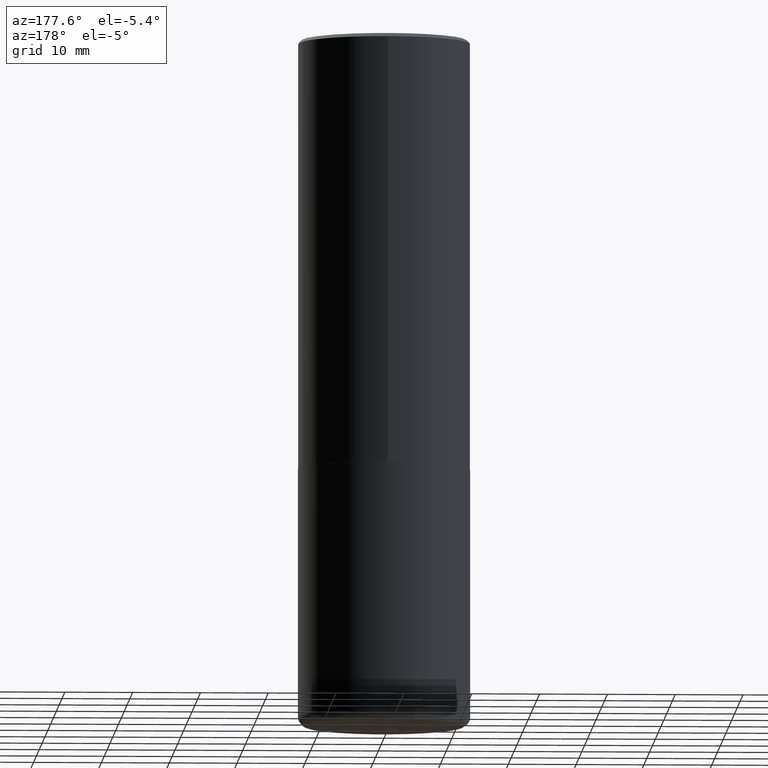
[diagram: clean part render]
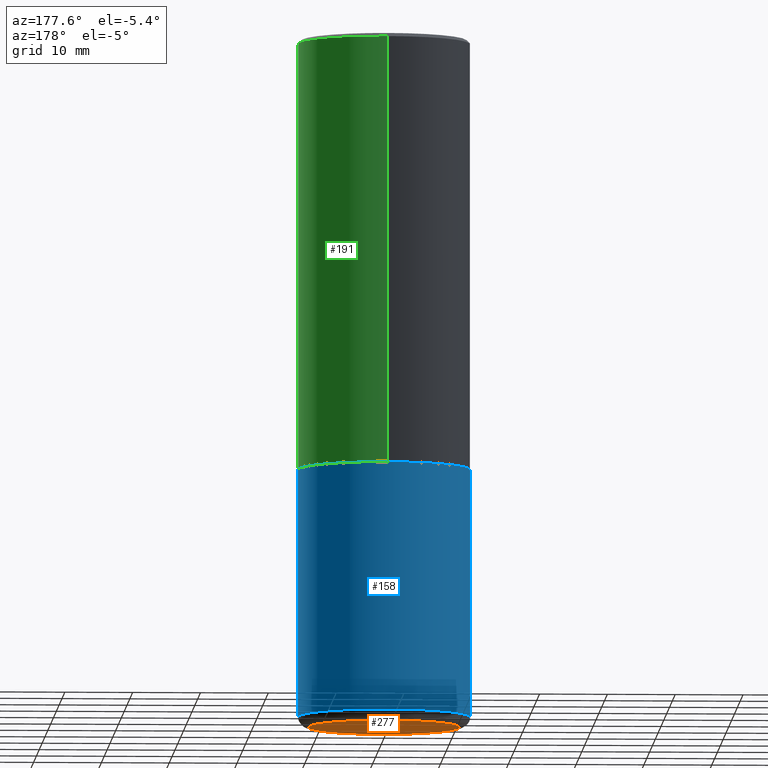
[diagram: same view with three faces highlighted in distinct colors, each labeled with its STEP entity id]
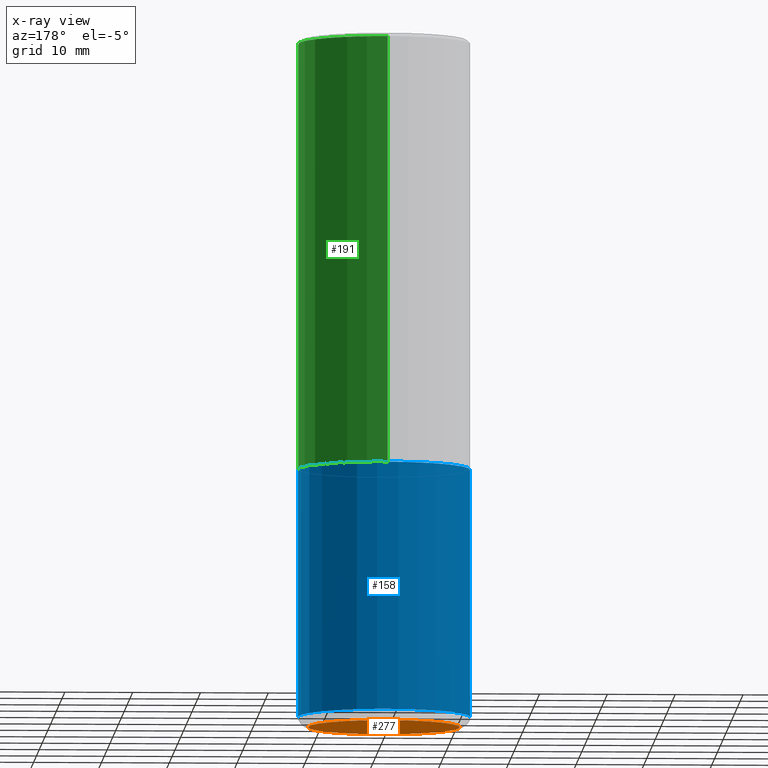
[diagram: x-ray of the same camera — body ghosted, the three highlighted faces saturated]
A machine part, auxiliary view with three faces highlighted in distinct colors.
The next image is the same camera in x-ray (body ghosted, the three faces saturated) — at least one of them is partly hidden behind the body in this view.
Their STEP definitions:

[orange] entity #277 — the highlighted planar face has unit normal (0, -0, -1).
#4 = DIRECTION ( 'NONE',  ( -1.000000000000000000, 6.982962677686265922E-15, -4.876176775795935793E-29 ) ) ;
#7 = DIRECTION ( 'NONE',  ( 2.438088387897960049E-29, -3.491481338843145188E-15, -1.000000000000000000 ) ) ;
#20 = DIRECTION ( 'NONE',  ( -2.445468806185136597E-29, 3.491481338843145583E-15, 1.000000000000000000 ) ) ;
#64 = EDGE_LOOP ( 'NONE', ( #126, #395 ) ) ;
#75 = AXIS2_PLACEMENT_3D ( 'NONE', #238, #7, #4 ) ;
#77 = CARTESIAN_POINT ( 'NONE',  ( 9.781875224740547508E-29, -1.396592535537258391E-14, -4.000000000000000888 ) ) ;
#112 = DIRECTION ( 'NONE',  ( -2.445468806185136597E-29, 3.491481338843145583E-15, 1.000000000000000000 ) ) ;
#125 = CIRCLE ( 'NONE', #396, 0.4400000000000000022 ) ;
#126 = ORIENTED_EDGE ( 'NONE', *, *, #163, .F. ) ;
#152 = DIRECTION ( 'NONE',  ( 1.000000000000000000, -6.982962677686266711E-15, 0.000000000000000000 ) ) ;
#163 = EDGE_CURVE ( 'NONE', #414, #225, #125, .T. ) ;
#185 = CIRCLE ( 'NONE', #196, 0.4400000000000000022 ) ;
#196 = AXIS2_PLACEMENT_3D ( 'NONE', #77, #112, #152 ) ;
#220 = CARTESIAN_POINT ( 'NONE',  ( 0.4400000000000000022, -1.703842893355454063E-14, -4.000000000000000888 ) ) ;
#225 = VERTEX_POINT ( 'NONE', #287 ) ;
#238 = CARTESIAN_POINT ( 'NONE',  ( 6.313440210036972125E-29, -1.893292170748942541E-14, -4.000000000000000000 ) ) ;
#252 = CARTESIAN_POINT ( 'NONE',  ( 9.781875224740547508E-29, -1.396592535537258391E-14, -4.000000000000000888 ) ) ;
#277 = ADVANCED_FACE ( 'NONE', ( #303 ), #300, .T. ) ;
#287 = CARTESIAN_POINT ( 'NONE',  ( -0.4400000000000000022, -1.052163005713481670E-14, -4.000000000000000888 ) ) ;
#300 = PLANE ( 'NONE',  #75 ) ;
#303 = FACE_OUTER_BOUND ( 'NONE', #64, .T. ) ;
#322 = DIRECTION ( 'NONE',  ( 1.000000000000000000, -6.982962677686266711E-15, 0.000000000000000000 ) ) ;
#393 = EDGE_CURVE ( 'NONE', #225, #414, #185, .T. ) ;
#395 = ORIENTED_EDGE ( 'NONE', *, *, #393, .F. ) ;
#396 = AXIS2_PLACEMENT_3D ( 'NONE', #252, #20, #322 ) ;
#414 = VERTEX_POINT ( 'NONE', #220 ) ;

[blue] entity #158 — the highlighted cylindrical surface (partial cylindrical patch) has radius 12.7 mm, axis along (-0, 0, 1).
#16 = CYLINDRICAL_SURFACE ( 'NONE', #388, 0.5000000000000000000 ) ;
#19 = DIRECTION ( 'NONE',  ( 1.000000000000000000, -6.982962677686265133E-15, 0.000000000000000000 ) ) ;
#23 = VECTOR ( 'NONE', #278, 39.37007874015748143 ) ;
#42 = LINE ( 'NONE', #178, #23 ) ;
#46 = ORIENTED_EDGE ( 'NONE', *, *, #122, .T. ) ;
#53 = DIRECTION ( 'NONE',  ( 1.000000000000000000, -6.982962677686269077E-15, 0.000000000000000000 ) ) ;
#54 = CARTESIAN_POINT ( 'NONE',  ( 6.113672015462842613E-29, -8.728703347107864943E-15, -2.500000000000000000 ) ) ;
#55 = CIRCLE ( 'NONE', #297, 0.5000000000000001110 ) ;
#58 = ORIENTED_EDGE ( 'NONE', *, *, #145, .F. ) ;
#67 = CARTESIAN_POINT ( 'NONE',  ( 0.5000000000000001110, -1.724791781388512737E-14, -3.939999999999999947 ) ) ;
#81 = CARTESIAN_POINT ( 'NONE',  ( 0.5000000000000000000, -1.222018468595099830E-14, -2.500000000000000000 ) ) ;
#94 = VERTEX_POINT ( 'NONE', #148 ) ;
#116 = DIRECTION ( 'NONE',  ( 1.000000000000000000, -6.982962677686266711E-15, 4.876176775795935793E-29 ) ) ;
#120 = DIRECTION ( 'NONE',  ( -2.445468806185136597E-29, 3.491481338843145583E-15, 1.000000000000000000 ) ) ;
#122 = EDGE_CURVE ( 'NONE', #359, #128, #55, .T. ) ;
#128 = VERTEX_POINT ( 'NONE', #350 ) ;
#134 = VERTEX_POINT ( 'NONE', #81 ) ;
#145 = EDGE_CURVE ( 'NONE', #134, #94, #274, .T. ) ;
#148 = CARTESIAN_POINT ( 'NONE',  ( -0.5000000000000000000, -7.689856232274428549E-15, -2.500000000000000000 ) ) ;
#158 = ADVANCED_FACE ( 'NONE', ( #407 ), #16, .T. ) ;
#172 = EDGE_LOOP ( 'NONE', ( #46, #391, #58, #209 ) ) ;
#178 = CARTESIAN_POINT ( 'NONE',  ( 0.5000000000000000000, -3.491481338843133355E-15, 2.438088387897967896E-29 ) ) ;
#182 = CARTESIAN_POINT ( 'NONE',  ( 0.000000000000000000, 0.000000000000000000, 0.000000000000000000 ) ) ;
#209 = ORIENTED_EDGE ( 'NONE', *, *, #326, .F. ) ;
#221 = AXIS2_PLACEMENT_3D ( 'NONE', #54, #120, #53 ) ;
#224 = CARTESIAN_POINT ( 'NONE',  ( 9.635147096369438236E-29, -1.375643647504199401E-14, -3.939999999999999947 ) ) ;
#256 = DIRECTION ( 'NONE',  ( -2.445468806185136597E-29, 3.491481338843145583E-15, 1.000000000000000000 ) ) ;
#274 = CIRCLE ( 'NONE', #221, 0.5000000000000000000 ) ;
#278 = DIRECTION ( 'NONE',  ( -2.445468806185136877E-29, 3.491481338843145188E-15, 1.000000000000000000 ) ) ;
#297 = AXIS2_PLACEMENT_3D ( 'NONE', #224, #316, #19 ) ;
#316 = DIRECTION ( 'NONE',  ( -2.445468806185136597E-29, 3.491481338843145583E-15, 1.000000000000000000 ) ) ;
#321 = VECTOR ( 'NONE', #341, 39.37007874015748143 ) ;
#326 = EDGE_CURVE ( 'NONE', #359, #134, #42, .T. ) ;
#331 = CARTESIAN_POINT ( 'NONE',  ( -0.5000000000000000000, 3.552713678800500929E-15, -2.459467545127452891E-29 ) ) ;
#335 = LINE ( 'NONE', #331, #321 ) ;
#341 = DIRECTION ( 'NONE',  ( -2.445468806185136877E-29, 3.491481338843145188E-15, 1.000000000000000000 ) ) ;
#350 = CARTESIAN_POINT ( 'NONE',  ( -0.5000000000000001110, -1.020372279624149151E-14, -3.939999999999999947 ) ) ;
#359 = VERTEX_POINT ( 'NONE', #67 ) ;
#380 = EDGE_CURVE ( 'NONE', #128, #94, #335, .T. ) ;
#388 = AXIS2_PLACEMENT_3D ( 'NONE', #182, #256, #116 ) ;
#391 = ORIENTED_EDGE ( 'NONE', *, *, #380, .T. ) ;
#407 = FACE_OUTER_BOUND ( 'NONE', #172, .T. ) ;

[green] entity #191 — the highlighted cylindrical surface (partial cylindrical patch) has radius 12.7 mm, axis along (-0, 0, 1).
#5 = EDGE_CURVE ( 'NONE', #310, #291, #336, .T. ) ;
#9 = CARTESIAN_POINT ( 'NONE',  ( 3.491481338843133355E-15, 0.4999999999999999445, -0.02000000000000185310 ) ) ;
#18 = CARTESIAN_POINT ( 'NONE',  ( 6.112015449145901369E-29, -8.724082112502882072E-15, -2.499000000000000110 ) ) ;
#21 = CARTESIAN_POINT ( 'NONE',  ( -3.491481338843073796E-15, -0.5000000000000089928, -2.498999999999998778 ) ) ;
#25 = DIRECTION ( 'NONE',  ( -6.982962677686265922E-15, -1.000000000000000000, 3.491029256703833834E-15 ) ) ;
#37 = CARTESIAN_POINT ( 'NONE',  ( 4.891568986911511881E-31, -6.982058513407704202E-17, -0.02000000000000010797 ) ) ;
#38 = LINE ( 'NONE', #299, #258 ) ;
#39 = CARTESIAN_POINT ( 'NONE',  ( 3.552713678800533273E-15, 0.4999999999999916178, -2.499000000000001886 ) ) ;
#40 = EDGE_LOOP ( 'NONE', ( #195, #130, #164, #136 ) ) ;
#44 = DIRECTION ( 'NONE',  ( -2.445784493455742698E-29, 3.491029256703833440E-15, 1.000000000000000000 ) ) ;
#52 = EDGE_CURVE ( 'NONE', #214, #201, #38, .T. ) ;
#68 = CARTESIAN_POINT ( 'NONE',  ( 3.552713678800501718E-15, 0.5000000000000001110, -1.745514628351917311E-15 ) ) ;
#85 = CYLINDRICAL_SURFACE ( 'NONE', #236, 0.5000000000000001110 ) ;
#105 = DIRECTION ( 'NONE',  ( -2.445784493455742698E-29, 3.491029256703833834E-15, 1.000000000000000000 ) ) ;
#110 = FACE_OUTER_BOUND ( 'NONE', #40, .T. ) ;
#130 = ORIENTED_EDGE ( 'NONE', *, *, #5, .T. ) ;
#136 = ORIENTED_EDGE ( 'NONE', *, *, #52, .F. ) ;
#141 = DIRECTION ( 'NONE',  ( -6.982962677686265922E-15, -1.000000000000000000, 3.491643216902136408E-15 ) ) ;
#147 = DIRECTION ( 'NONE',  ( -6.982962677686266711E-15, -1.000000000000000000, 3.278217592397114284E-15 ) ) ;
#154 = CARTESIAN_POINT ( 'NONE',  ( -3.430248998885764992E-15, -0.5000000000000001110, -0.01999999999999835937 ) ) ;
#164 = ORIENTED_EDGE ( 'NONE', *, *, #337, .F. ) ;
#191 = ADVANCED_FACE ( 'NONE', ( #110 ), #85, .T. ) ;
#195 = ORIENTED_EDGE ( 'NONE', *, *, #385, .T. ) ;
#201 = VERTEX_POINT ( 'NONE', #154 ) ;
#214 = VERTEX_POINT ( 'NONE', #21 ) ;
#236 = AXIS2_PLACEMENT_3D ( 'NONE', #319, #248, #25 ) ;
#246 = CIRCLE ( 'NONE', #259, 0.5000000000000000000 ) ;
#248 = DIRECTION ( 'NONE',  ( -2.445784493455742698E-29, 3.491029256703833834E-15, 1.000000000000000000 ) ) ;
#258 = VECTOR ( 'NONE', #394, 39.37007874015748143 ) ;
#259 = AXIS2_PLACEMENT_3D ( 'NONE', #37, #105, #141 ) ;
#291 = VERTEX_POINT ( 'NONE', #9 ) ;
#299 = CARTESIAN_POINT ( 'NONE',  ( -3.491481338843133750E-15, -0.5000000000000001110, 1.745514628351917311E-15 ) ) ;
#310 = VERTEX_POINT ( 'NONE', #39 ) ;
#319 = CARTESIAN_POINT ( 'NONE',  ( 0.000000000000000000, 0.000000000000000000, 0.000000000000000000 ) ) ;
#336 = LINE ( 'NONE', #68, #374 ) ;
#337 = EDGE_CURVE ( 'NONE', #201, #291, #246, .T. ) ;
#374 = VECTOR ( 'NONE', #44, 39.37007874015748143 ) ;
#375 = CIRCLE ( 'NONE', #381, 0.5000000000000002220 ) ;
#381 = AXIS2_PLACEMENT_3D ( 'NONE', #18, #404, #147 ) ;
#385 = EDGE_CURVE ( 'NONE', #214, #310, #375, .T. ) ;
#394 = DIRECTION ( 'NONE',  ( -2.445784493455742698E-29, 3.491029256703833440E-15, 1.000000000000000000 ) ) ;
#404 = DIRECTION ( 'NONE',  ( -2.445784493455742698E-29, 3.491029256703833834E-15, 1.000000000000000000 ) ) ;